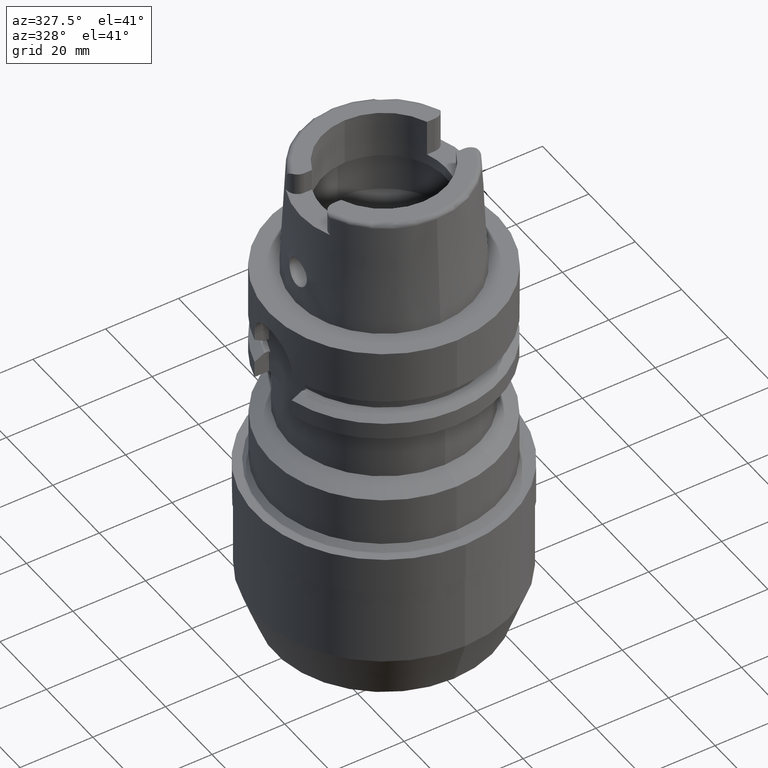
[diagram: clean part render]
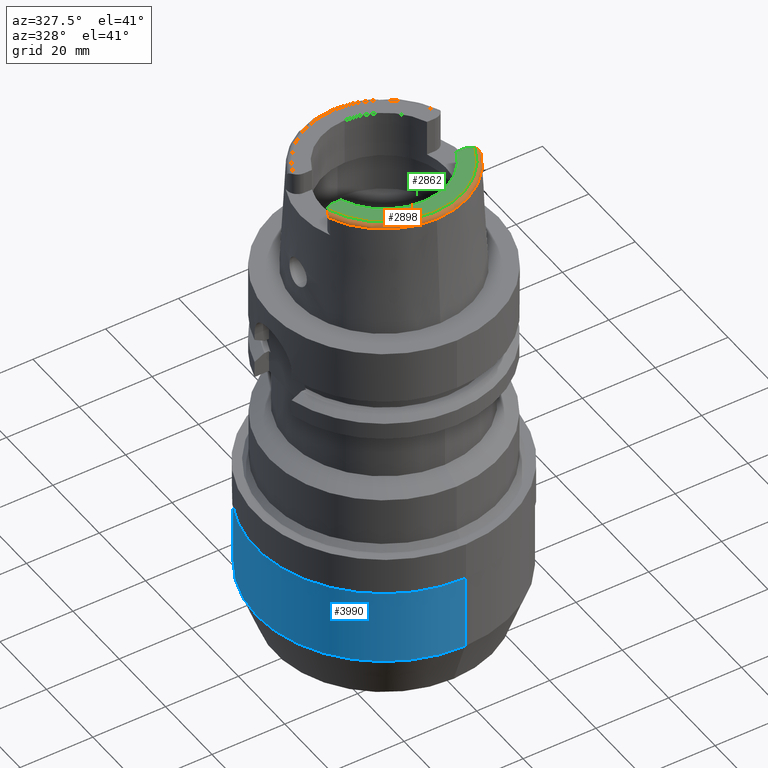
[diagram: same view with three faces highlighted in distinct colors, each labeled with its STEP entity id]
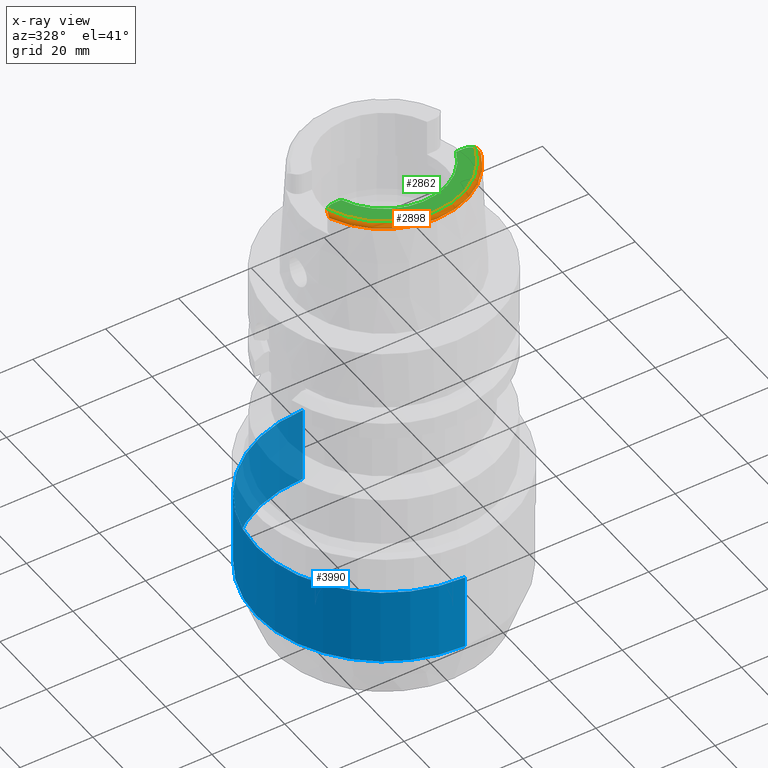
[diagram: x-ray of the same camera — body ghosted, the three highlighted faces saturated]
A machine part, auxiliary view with three faces highlighted in distinct colors.
The next image is the same camera in x-ray (body ghosted, the three faces saturated) — at least one of them is partly hidden behind the body in this view.
Their STEP definitions:

[orange] entity #2898 — the highlighted toroidal blend (fillet) surface has major radius 21.5735 mm and minor (blend) radius 1.2 mm.
#193=CARTESIAN_POINT('',(0.E0,0.E0,3.2E1));
#194=DIRECTION('',(0.E0,0.E0,-1.E0));
#195=DIRECTION('',(9.395199128801E-1,-3.424942821446E-1,0.E0));
#196=AXIS2_PLACEMENT_3D('',#193,#194,#195);
#201=CARTESIAN_POINT('',(0.E0,0.E0,3.2E1));
#202=DIRECTION('',(0.E0,0.E0,-1.E0));
#203=DIRECTION('',(-9.289215035771E-4,-9.999995685523E-1,0.E0));
#204=AXIS2_PLACEMENT_3D('',#201,#202,#203);
#223=CARTESIAN_POINT('',(-2.086974104062E1,-9.111384045016E0,3.085992599770E1));
#224=CARTESIAN_POINT('',(-2.086967997453E1,-9.106830063335E0,3.089748625873E1));
#225=CARTESIAN_POINT('',(-2.086945189867E1,-9.089084554606E0,3.097451603733E1));
#226=CARTESIAN_POINT('',(-2.086784157804E1,-9.031143192698E0,3.109801017862E1));
#227=CARTESIAN_POINT('',(-2.086325103455E1,-8.944511770366E0,3.122123663344E1));
#228=CARTESIAN_POINT('',(-2.085303187716E1,-8.829119155252E0,3.134610441007E1));
#229=CARTESIAN_POINT('',(-2.083410224243E1,-8.687773654869E0,3.146986640792E1));
#230=CARTESIAN_POINT('',(-2.080193847649E1,-8.518203963348E0,3.159388894471E1));
#231=CARTESIAN_POINT('',(-2.075055294615E1,-8.319108447290E0,3.171604467110E1));
#232=CARTESIAN_POINT('',(-2.067193834318E1,-8.089769194625E0,3.183146038266E1));
#233=CARTESIAN_POINT('',(-2.056001144497E1,-7.839900437892E0,3.192772511973E1));
#234=CARTESIAN_POINT('',(-2.041893006504E1,-7.594538394003E0,3.198801427945E1));
#235=CARTESIAN_POINT('',(-2.031966064977E1,-7.454706320224E0,3.2E1));
#236=CARTESIAN_POINT('',(-2.026871835884E1,-7.388795116670E0,3.2E1));
#241=CARTESIAN_POINT('',(2.026871835884E1,-7.388795116670E0,3.2E1));
#242=CARTESIAN_POINT('',(2.031967325187E1,-7.454722625333E0,3.2E1));
#243=CARTESIAN_POINT('',(2.041894272613E1,-7.594563501925E0,3.198800592821E1));
#244=CARTESIAN_POINT('',(2.055994541011E1,-7.839783687757E0,3.192775510282E1));
#245=CARTESIAN_POINT('',(2.067184259266E1,-8.089530866250E0,3.183156419624E1));
#246=CARTESIAN_POINT('',(2.075048046218E1,-8.318866404370E0,3.171617912620E1));
#247=CARTESIAN_POINT('',(2.080188541371E1,-8.517964163194E0,3.159404940832E1));
#248=CARTESIAN_POINT('',(2.083407991424E1,-8.687620609799E0,3.146999417926E1));
#249=CARTESIAN_POINT('',(2.085302963601E1,-8.829091091406E0,3.134613434180E1));
#250=CARTESIAN_POINT('',(2.086324945727E1,-8.944487859808E0,3.122126902255E1));
#251=CARTESIAN_POINT('',(2.086784273721E1,-9.031165945376E0,3.109797478266E1));
#252=CARTESIAN_POINT('',(2.086945164282E1,-9.089082702380E0,3.097451413363E1));
#253=CARTESIAN_POINT('',(2.086968004802E1,-9.106830069906E0,3.089748351323E1));
#254=CARTESIAN_POINT('',(2.086974110889E1,-9.111383544903E0,3.085992740223E1));
#259=CARTESIAN_POINT('',(0.E0,0.E0,3.085992712280E1));
#260=DIRECTION('',(0.E0,0.E0,-1.E0));
#261=DIRECTION('',(9.164655183266E-1,-4.001136759952E-1,0.E0));
#262=AXIS2_PLACEMENT_3D('',#259,#260,#261);
#267=CARTESIAN_POINT('',(0.E0,0.E0,3.085992712280E1));
#268=DIRECTION('',(0.E0,0.E0,-1.E0));
#269=DIRECTION('',(0.E0,-1.E0,0.E0));
#270=AXIS2_PLACEMENT_3D('',#267,#268,#269);
#275=CARTESIAN_POINT('',(0.E0,0.E0,3.085992712280E1));
#276=DIRECTION('',(0.E0,0.E0,-1.E0));
#277=DIRECTION('',(-9.289215035773E-4,-9.999995685523E-1,0.E0));
#278=AXIS2_PLACEMENT_3D('',#275,#276,#277);
#2404=CARTESIAN_POINT('',(-2.026871835884E1,-7.388795116669E0,3.2E1));
#2406=VERTEX_POINT('',#2404);
#2416=CARTESIAN_POINT('',(2.026871835884E1,-7.388795116670E0,3.2E1));
#2417=VERTEX_POINT('',#2416);
#2418=CARTESIAN_POINT('',(-2.004007373911E-2,-2.157347527826E1,3.2E1));
#2419=VERTEX_POINT('',#2418);
#2440=VERTEX_POINT('',#223);
#2449=VERTEX_POINT('',#254);
#2450=CARTESIAN_POINT('',(0.E0,-2.277198729362E1,3.085992712280E1));
#2451=VERTEX_POINT('',#2450);
#2452=CARTESIAN_POINT('',(-2.115338867623E-2,-2.277197746870E1,
3.085992712280E1));
#2453=VERTEX_POINT('',#2452);
#2880=CARTESIAN_POINT('',(0.E0,0.E0,3.08E1));
#2881=DIRECTION('',(0.E0,0.E0,-1.E0));
#2882=DIRECTION('',(-9.289215035770E-4,-9.999995685523E-1,0.E0));
#2883=AXIS2_PLACEMENT_3D('',#2880,#2881,#2882);
#2884=TOROIDAL_SURFACE('',#2883,2.157348458609E1,1.2E0);
#2885=ORIENTED_EDGE('',*,*,#2869,.T.);
#2886=ORIENTED_EDGE('',*,*,#2858,.F.);
#2887=ORIENTED_EDGE('',*,*,#2856,.F.);
#2889=ORIENTED_EDGE('',*,*,#2888,.T.);
#2891=ORIENTED_EDGE('',*,*,#2890,.T.);
#2893=ORIENTED_EDGE('',*,*,#2892,.T.);
#2895=ORIENTED_EDGE('',*,*,#2894,.T.);
#2896=EDGE_LOOP('',(#2885,#2886,#2887,#2889,#2891,#2893,#2895));
#2897=FACE_OUTER_BOUND('',#2896,.F.);
#197=CIRCLE('',#196,2.157348458609E1);
#205=CIRCLE('',#204,2.157348458609E1);
#237=B_SPLINE_CURVE_WITH_KNOTS('',3,(#223,#224,#225,#226,#227,#228,#229,#230,
#231,#232,#233,#234,#235,#236),.UNSPECIFIED.,.F.,.F.,(4,1,1,1,1,1,1,1,1,1,1,4),(
0.E0,9.090909090909E-2,1.818181818182E-1,2.727272727273E-1,3.636363636364E-1,
4.545454545455E-1,5.454545454545E-1,6.363636363636E-1,7.272727272727E-1,
8.181818181818E-1,9.090909090909E-1,1.E0),.UNSPECIFIED.);
#255=B_SPLINE_CURVE_WITH_KNOTS('',3,(#241,#242,#243,#244,#245,#246,#247,#248,
#249,#250,#251,#252,#253,#254),.UNSPECIFIED.,.F.,.F.,(4,1,1,1,1,1,1,1,1,1,1,4),(
0.E0,9.090909090909E-2,1.818181818182E-1,2.727272727273E-1,3.636363636364E-1,
4.545454545455E-1,5.454545454545E-1,6.363636363636E-1,7.272727272727E-1,
8.181818181818E-1,9.090909090909E-1,1.E0),.UNSPECIFIED.);
#263=CIRCLE('',#262,2.277198729362E1);
#271=CIRCLE('',#270,2.277198729362E1);
#279=CIRCLE('',#278,2.277198729362E1);
#2856=EDGE_CURVE('',#2417,#2419,#197,.T.);
#2858=EDGE_CURVE('',#2419,#2406,#205,.T.);
#2869=EDGE_CURVE('',#2440,#2406,#237,.T.);
#2888=EDGE_CURVE('',#2417,#2449,#255,.T.);
#2890=EDGE_CURVE('',#2449,#2451,#263,.T.);
#2892=EDGE_CURVE('',#2451,#2453,#271,.T.);
#2894=EDGE_CURVE('',#2453,#2440,#279,.T.);
#2898=ADVANCED_FACE('',(#2897),#2884,.T.);

[blue] entity #3990 — the highlighted cylindrical surface (partial cylindrical patch) has radius 35 mm, axis along (0, 0, -1).
#1802=CARTESIAN_POINT('',(0.E0,0.E0,-7.02E1));
#1803=DIRECTION('',(0.E0,0.E0,-1.E0));
#1804=DIRECTION('',(0.E0,-1.E0,0.E0));
#1805=AXIS2_PLACEMENT_3D('',#1802,#1803,#1804);
#1818=DIRECTION('',(0.E0,-7.408502458162E-14,-1.E0));
#1819=VECTOR('',#1818,2.11E1);
#1820=CARTESIAN_POINT('',(0.E0,-3.5E1,-7.02E1));
#1821=LINE('',#1820,#1819);
#1825=DIRECTION('',(0.E0,7.341152435815E-14,-1.E0));
#1826=VECTOR('',#1825,2.11E1);
#1827=CARTESIAN_POINT('',(0.E0,3.5E1,-7.02E1));
#1828=LINE('',#1827,#1826);
#1847=CARTESIAN_POINT('',(0.E0,-1.201990833363E-14,-9.13E1));
#1848=DIRECTION('',(0.E0,0.E0,1.E0));
#1849=DIRECTION('',(0.E0,1.E0,0.E0));
#1850=AXIS2_PLACEMENT_3D('',#1847,#1848,#1849);
#2548=CARTESIAN_POINT('',(0.E0,3.5E1,-9.13E1));
#2549=VERTEX_POINT('',#2548);
#2550=CARTESIAN_POINT('',(0.E0,-3.5E1,-9.13E1));
#2551=VERTEX_POINT('',#2550);
#2552=CARTESIAN_POINT('',(0.E0,3.5E1,-7.02E1));
#2553=VERTEX_POINT('',#2552);
#2554=CARTESIAN_POINT('',(0.E0,-3.5E1,-7.02E1));
#2555=VERTEX_POINT('',#2554);
#3976=CARTESIAN_POINT('',(0.E0,0.E0,3.885E1));
#3977=DIRECTION('',(0.E0,0.E0,-1.E0));
#3978=DIRECTION('',(0.E0,-1.E0,0.E0));
#3979=AXIS2_PLACEMENT_3D('',#3976,#3977,#3978);
#3980=CYLINDRICAL_SURFACE('',#3979,3.5E1);
#3982=ORIENTED_EDGE('',*,*,#3981,.F.);
#3983=ORIENTED_EDGE('',*,*,#3969,.F.);
#3985=ORIENTED_EDGE('',*,*,#3984,.T.);
#3987=ORIENTED_EDGE('',*,*,#3986,.F.);
#3988=EDGE_LOOP('',(#3982,#3983,#3985,#3987));
#3989=FACE_OUTER_BOUND('',#3988,.F.);
#1806=CIRCLE('',#1805,3.5E1);
#1851=CIRCLE('',#1850,3.5E1);
#3969=EDGE_CURVE('',#2555,#2553,#1806,.T.);
#3981=EDGE_CURVE('',#2553,#2549,#1828,.T.);
#3984=EDGE_CURVE('',#2555,#2551,#1821,.T.);
#3986=EDGE_CURVE('',#2549,#2551,#1851,.T.);
#3990=ADVANCED_FACE('',(#3989),#3980,.T.);

[green] entity #2862 — the highlighted planar face has unit normal (0, 0, -1).
#154=DIRECTION('',(-1.E0,8.644330667353E-14,0.E0));
#155=VECTOR('',#154,2.188509563969E0);
#156=CARTESIAN_POINT('',(-1.580149043603E1,-6.27E0,3.2E1));
#157=LINE('',#156,#155);
#161=CARTESIAN_POINT('',(-1.799E1,-9.15E0,3.2E1));
#162=DIRECTION('',(0.E0,0.E0,-1.E0));
#163=DIRECTION('',(-7.912216523764E-1,6.115294733787E-1,0.E0));
#164=AXIS2_PLACEMENT_3D('',#161,#162,#163);
#169=CARTESIAN_POINT('',(0.E0,0.E0,3.2E1));
#170=DIRECTION('',(0.E0,0.E0,1.E0));
#171=DIRECTION('',(-9.294994374136E-1,-3.688235294118E-1,0.E0));
#172=AXIS2_PLACEMENT_3D('',#169,#170,#171);
#177=CARTESIAN_POINT('',(0.E0,0.E0,3.2E1));
#178=DIRECTION('',(0.E0,0.E0,1.E0));
#179=DIRECTION('',(0.E0,-1.E0,0.E0));
#180=AXIS2_PLACEMENT_3D('',#177,#178,#179);
#185=CARTESIAN_POINT('',(1.799E1,-9.15E0,3.2E1));
#186=DIRECTION('',(0.E0,0.E0,-1.E0));
#187=DIRECTION('',(0.E0,1.E0,0.E0));
#188=AXIS2_PLACEMENT_3D('',#185,#186,#187);
#193=CARTESIAN_POINT('',(0.E0,0.E0,3.2E1));
#194=DIRECTION('',(0.E0,0.E0,-1.E0));
#195=DIRECTION('',(9.395199128801E-1,-3.424942821446E-1,0.E0));
#196=AXIS2_PLACEMENT_3D('',#193,#194,#195);
#201=CARTESIAN_POINT('',(0.E0,0.E0,3.2E1));
#202=DIRECTION('',(0.E0,0.E0,-1.E0));
#203=DIRECTION('',(-9.289215035771E-4,-9.999995685523E-1,0.E0));
#204=AXIS2_PLACEMENT_3D('',#201,#202,#203);
#297=DIRECTION('',(-1.E0,-8.522579531193E-14,0.E0));
#298=VECTOR('',#297,2.188509563969E0);
#299=CARTESIAN_POINT('',(1.799E1,-6.27E0,3.2E1));
#300=LINE('',#299,#298);
#2404=CARTESIAN_POINT('',(-2.026871835884E1,-7.388795116669E0,3.2E1));
#2405=CARTESIAN_POINT('',(-1.799E1,-6.27E0,3.2E1));
#2406=VERTEX_POINT('',#2404);
#2407=VERTEX_POINT('',#2405);
#2408=CARTESIAN_POINT('',(-1.580149043603E1,-6.27E0,3.2E1));
#2409=VERTEX_POINT('',#2408);
#2410=CARTESIAN_POINT('',(0.E0,-1.7E1,3.2E1));
#2411=VERTEX_POINT('',#2410);
#2412=CARTESIAN_POINT('',(1.580149043603E1,-6.27E0,3.2E1));
#2413=VERTEX_POINT('',#2412);
#2414=CARTESIAN_POINT('',(1.799E1,-6.27E0,3.2E1));
#2415=VERTEX_POINT('',#2414);
#2416=CARTESIAN_POINT('',(2.026871835884E1,-7.388795116670E0,3.2E1));
#2417=VERTEX_POINT('',#2416);
#2418=CARTESIAN_POINT('',(-2.004007373911E-2,-2.157347527826E1,3.2E1));
#2419=VERTEX_POINT('',#2418);
#2841=CARTESIAN_POINT('',(0.E0,0.E0,3.2E1));
#2842=DIRECTION('',(0.E0,0.E0,-1.E0));
#2843=DIRECTION('',(0.E0,-1.E0,0.E0));
#2844=AXIS2_PLACEMENT_3D('',#2841,#2842,#2843);
#2845=PLANE('',#2844);
#2847=ORIENTED_EDGE('',*,*,#2846,.T.);
#2848=ORIENTED_EDGE('',*,*,#2832,.F.);
#2849=ORIENTED_EDGE('',*,*,#2798,.T.);
#2851=ORIENTED_EDGE('',*,*,#2850,.T.);
#2853=ORIENTED_EDGE('',*,*,#2852,.F.);
#2855=ORIENTED_EDGE('',*,*,#2854,.T.);
#2857=ORIENTED_EDGE('',*,*,#2856,.T.);
#2859=ORIENTED_EDGE('',*,*,#2858,.T.);
#2860=EDGE_LOOP('',(#2847,#2848,#2849,#2851,#2853,#2855,#2857,#2859));
#2861=FACE_OUTER_BOUND('',#2860,.F.);
#165=CIRCLE('',#164,2.88E0);
#173=CIRCLE('',#172,1.7E1);
#181=CIRCLE('',#180,1.7E1);
#189=CIRCLE('',#188,2.88E0);
#197=CIRCLE('',#196,2.157348458609E1);
#205=CIRCLE('',#204,2.157348458609E1);
#2798=EDGE_CURVE('',#2409,#2411,#173,.T.);
#2832=EDGE_CURVE('',#2409,#2407,#157,.T.);
#2846=EDGE_CURVE('',#2406,#2407,#165,.T.);
#2850=EDGE_CURVE('',#2411,#2413,#181,.T.);
#2852=EDGE_CURVE('',#2415,#2413,#300,.T.);
#2854=EDGE_CURVE('',#2415,#2417,#189,.T.);
#2856=EDGE_CURVE('',#2417,#2419,#197,.T.);
#2858=EDGE_CURVE('',#2419,#2406,#205,.T.);
#2862=ADVANCED_FACE('',(#2861),#2845,.F.);